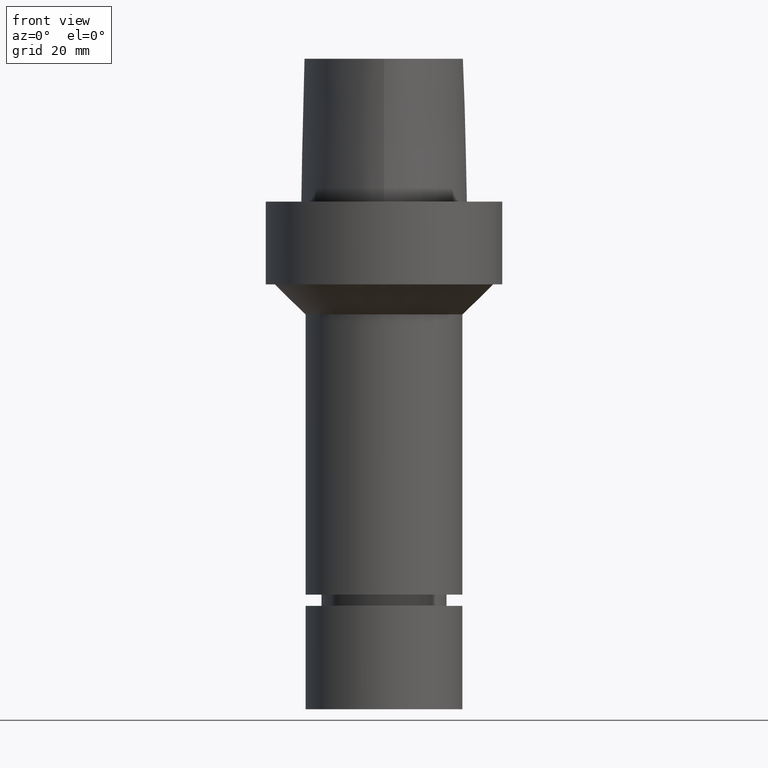
[diagram: clean part render]
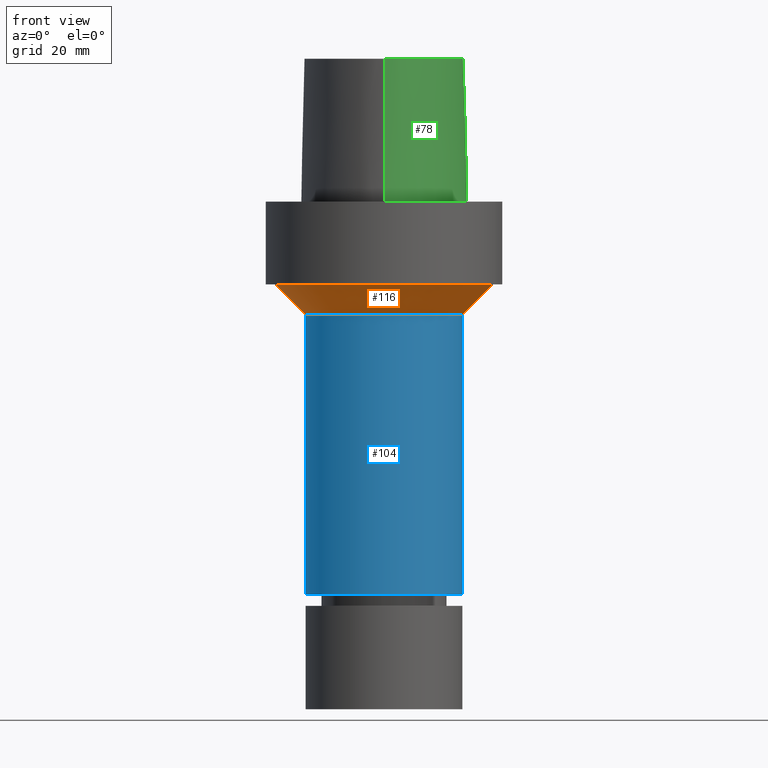
[diagram: same view with three faces highlighted in distinct colors, each labeled with its STEP entity id]
A machine part, front view with three faces highlighted in distinct colors.
Their STEP definitions:

[orange] entity #116 — the highlighted conical surface has half-angle 45 deg.
#113=EDGE_CURVE('Unnamed[1]',#253,#253,#254,.T.);
#116=ADVANCED_FACE('Unnamed[1]',(#257,#258),#259,.T.);
#146=EDGE_CURVE('Unnamed[1]',#300,#300,#301,.T.);
#253=VERTEX_POINT('',#528);
#254=CIRCLE('',#529,21.0000000000003);
#257=FACE_BOUND('',#533,.T.);
#258=FACE_BOUND('',#534,.T.);
#259=CONICAL_SURFACE('',#535,25.0000000000003,0.785398163397453);
#300=VERTEX_POINT('',#657);
#301=CIRCLE('',#658,29.0000000000003);
#528=CARTESIAN_POINT('',(1.83697019872106E-015,21.0000000000003,-30.0000000000005));
#529=AXIS2_PLACEMENT_3D('',#799,#800,#801);
#533=EDGE_LOOP('',(#803));
#534=EDGE_LOOP('',(#804));
#535=AXIS2_PLACEMENT_3D('',#805,#806,#807);
#657=CARTESIAN_POINT('',(1.34711147906212E-015,29.0000000000003,-22.0000000000006));
#658=AXIS2_PLACEMENT_3D('',#847,#848,#849);
#799=CARTESIAN_POINT('',(1.83697019872106E-015,3.67394039744212E-015,-30.0000000000005));
#800=DIRECTION('',(6.12323399573677E-017,1.22464679914735E-016,-1.0));
#801=DIRECTION('',(-1.23259516440783E-032,1.0,1.22464679914735E-016));
#803=ORIENTED_EDGE('',*,*,#113,.F.);
#804=ORIENTED_EDGE('',*,*,#146,.T.);
#805=CARTESIAN_POINT('',(1.59204083889159E-015,3.18408167778318E-015,-26.0000000000005));
#806=DIRECTION('',(-6.12323399573676E-017,-1.22464679914735E-016,1.0));
#807=DIRECTION('',(-1.23259516440783E-032,1.0,1.22464679914735E-016));
#847=CARTESIAN_POINT('',(1.34711147906212E-015,2.69422295812425E-015,-22.0000000000006));
#848=DIRECTION('',(6.12323399573676E-017,1.22464679914735E-016,-1.0));
#849=DIRECTION('',(-1.23259516440783E-032,1.0,1.22464679914735E-016));

[blue] entity #104 — the highlighted cylindrical surface (bore or boss wall) has radius 21 mm, axis along (0, 0, -1).
#104=ADVANCED_FACE('Unnamed[1]',(#239,#240),#241,.T.);
#113=EDGE_CURVE('Unnamed[1]',#253,#253,#254,.T.);
#148=EDGE_CURVE('Unnamed[1]',#303,#303,#304,.T.);
#239=FACE_BOUND('',#493,.T.);
#240=FACE_BOUND('',#494,.T.);
#241=CYLINDRICAL_SURFACE('',#495,21.0000000000002);
#253=VERTEX_POINT('',#528);
#254=CIRCLE('',#529,21.0000000000003);
#303=VERTEX_POINT('',#661);
#304=CIRCLE('',#662,21.0000000000001);
#493=EDGE_LOOP('',(#785));
#494=EDGE_LOOP('',(#786));
#495=AXIS2_PLACEMENT_3D('',#787,#788,#789);
#528=CARTESIAN_POINT('',(1.83697019872106E-015,21.0000000000003,-30.0000000000005));
#529=AXIS2_PLACEMENT_3D('',#799,#800,#801);
#661=CARTESIAN_POINT('',(6.39877952554491E-015,21.0000000000001,-104.5));
#662=AXIS2_PLACEMENT_3D('',#850,#851,#852);
#785=ORIENTED_EDGE('',*,*,#148,.F.);
#786=ORIENTED_EDGE('',*,*,#113,.T.);
#787=CARTESIAN_POINT('',(4.11787486213299E-015,8.23574972426598E-015,-67.2500000000002));
#788=DIRECTION('',(6.12323399573677E-017,1.22464679914735E-016,-1.0));
#789=DIRECTION('',(-1.23259516440783E-032,1.0,1.22464679914735E-016));
#799=CARTESIAN_POINT('',(1.83697019872106E-015,3.67394039744212E-015,-30.0000000000005));
#800=DIRECTION('',(6.12323399573677E-017,1.22464679914735E-016,-1.0));
#801=DIRECTION('',(-1.23259516440783E-032,1.0,1.22464679914735E-016));
#850=CARTESIAN_POINT('',(6.39877952554491E-015,1.27975590510898E-014,-104.5));
#851=DIRECTION('',(6.12323399573677E-017,1.22464679914735E-016,-1.0));
#852=DIRECTION('',(-1.23259516440783E-032,1.0,1.22464679914735E-016));

[green] entity #78 — the highlighted face is a freeform B-spline surface patch.
#75=EDGE_CURVE('Unnamed[1]',#195,#196,#197,.T.);
#78=ADVANCED_FACE('Unnamed[1]',(#200),#201,.T.);
#80=EDGE_CURVE('Unnamed[1]',#203,#204,#205,.T.);
#101=EDGE_CURVE('Unnamed[1]',#195,#203,#236,.T.);
#160=EDGE_CURVE('Unnamed[1]',#204,#196,#320,.T.);
#195=VERTEX_POINT('',#354);
#196=VERTEX_POINT('',#355);
#197=LINE('',#356,#357);
#200=FACE_OUTER_BOUND('',#361,.T.);
#201=B_SPLINE_SURFACE_WITH_KNOTS('',3,3,((#362,#363,#364,#365),(#366,#367,#368,#369),(#370,#371,#372,#373),(#374,#375,#376,#377),(#378,#379,#380,#381),(#382,#383,#384,#385),(#386,#387,#388,#389),(#390,#391,#392,#393),(#394,#395,#396,#397),(#398,#399,#400,#401),(#402,#403,#404,#405),(#406,#407,#408,#409),(#410,#411,#412,#413),(#414,#415,#416,#417),(#418,#419,#420,#421),(#422,#423,#424,#425),(#426,#427,#428,#429)),.UNSPECIFIED.,.F.,.F.,.F.,(4,1,1,1,1,1,1,1,1,1,1,1,1,1,4),(4,4),(-13.2302678617486,-12.816821991069,-12.4033761203893,-11.9899302497097,-11.57648437903,-11.1630385083504,-10.9563155730106,-10.7495926376707,-10.3361467669911,-9.92270089631145,-9.09580915495216,-8.26891741359287,-7.44202567223358,-7.02857980155394,-6.6151339308743),(-3.8,0.0),.UNSPECIFIED.);
#203=VERTEX_POINT('',#432);
#204=VERTEX_POINT('',#433);
#205=LINE('',#434,#435);
#236=B_SPLINE_CURVE_WITH_KNOTS('',3,(#474,#475,#476,#477,#478,#479,#480,#481,#482,#483,#484,#485,#486,#487,#488,#489),.UNSPECIFIED.,.F.,.F.,(4,1,1,1,1,1,1,1,1,1,1,1,1,4),(6.61513393087476,6.99917207152274,7.48193246986995,7.96289324787093,8.45540287038584,9.10291653679981,9.67129810936083,10.1618749681153,10.6358867802489,11.1080734988593,11.6043706019633,12.09451993853,12.6985979284494,13.2302678617486),.UNSPECIFIED.);
#320=B_SPLINE_CURVE_WITH_KNOTS('',3,(#699,#700,#701,#702,#703,#704,#705,#706,#707,#708,#709,#710,#711,#712,#713,#714,#715),.UNSPECIFIED.,.F.,.F.,(4,1,1,1,1,1,1,1,1,1,1,1,1,1,4),(-13.2302678617486,-12.816821991069,-12.4033761203893,-11.9899302497097,-11.57648437903,-11.1630385083504,-10.9563155730106,-10.7495926376707,-10.3361467669911,-9.92270089631145,-9.09580915495216,-8.26891741359287,-7.44202567223358,-7.02857980155394,-6.6151339308743),.UNSPECIFIED.);
#354=CARTESIAN_POINT('',(0.038736923393866,-22.5191997536361,38.0));
#355=CARTESIAN_POINT('',(0.04359356758149,-23.4691235068931,7.78075697532443E-032));
#356=CARTESIAN_POINT('',(0.038736923393866,-22.5191997536361,38.0));
#357=VECTOR('',#740,38.0118715498723);
#361=EDGE_LOOP('',(#742,#743,#744,#745));
#362=CARTESIAN_POINT('',(-0.001218367817519,19.7276822012873,38.0));
#363=CARTESIAN_POINT('',(0.014082083248157,20.0439577123075,25.3333333333066));
#364=CARTESIAN_POINT('',(0.029382534313671,20.3602332232908,12.6666666666934));
#365=CARTESIAN_POINT('',(0.044682985379347,20.6765087343109,1.61778115328528E-031));
#366=CARTESIAN_POINT('',(1.37788651195108,19.6609652834875,38.0));
#367=CARTESIAN_POINT('',(1.3931885827258,19.9772407169847,25.3333333333066));
#368=CARTESIAN_POINT('',(1.40849065356095,20.2935162254648,12.6666666666934));
#369=CARTESIAN_POINT('',(1.42379272427753,20.6097915814392,8.62816615085482E-032));
#370=CARTESIAN_POINT('',(4.135446440878,19.5347778787784,38.0));
#371=CARTESIAN_POINT('',(4.16466278851883,19.8511031866125,25.3333333333066));
#372=CARTESIAN_POINT('',(4.1938791526746,20.1674284644204,12.6666666666934));
#373=CARTESIAN_POINT('',(4.2230955003445,20.4837538303966,1.4791141972894E-031));
#374=CARTESIAN_POINT('',(8.213607363795,18.7706026638736,38.0));
#375=CARTESIAN_POINT('',(8.29980745008421,19.0767495109635,25.3333333333066));
#376=CARTESIAN_POINT('',(8.38600751285747,19.3828964329996,12.6666666666934));
#377=CARTESIAN_POINT('',(8.47220762821777,19.6890432607088,9.86076131526265E-032));
#378=CARTESIAN_POINT('',(12.1316338645671,17.3698624840857,38.0));
#379=CARTESIAN_POINT('',(12.2591308270381,17.6610739397708,25.3333333333066));
#380=CARTESIAN_POINT('',(12.3866278083543,17.9522853923553,12.6666666666934));
#381=CARTESIAN_POINT('',(12.5141247708253,18.2434968480404,0.0));
#382=CARTESIAN_POINT('',(15.7706546153679,15.3789501349612,38.0));
#383=CARTESIAN_POINT('',(15.9483905900895,15.6437731794811,25.3333333333066));
#384=CARTESIAN_POINT('',(16.1261265513272,15.9085961736944,12.6666666666934));
#385=CARTESIAN_POINT('',(16.3038624872874,16.1734192182143,1.97215226305253E-031));
#386=CARTESIAN_POINT('',(18.4265894256284,13.0570022172893,38.0));
#387=CARTESIAN_POINT('',(18.6659567517146,13.2725589420689,25.3333333333066));
#388=CARTESIAN_POINT('',(18.9053240921419,13.4881156488541,12.6666666666934));
#389=CARTESIAN_POINT('',(19.1446913988473,13.7036723639434,-1.97215226305253E-031));
#390=CARTESIAN_POINT('',(19.8679958653038,10.6923771981998,38.0));
#391=CARTESIAN_POINT('',(20.1559937048299,10.8287388264873,25.3333333333066));
#392=CARTESIAN_POINT('',(20.4439915656177,10.965100461641,12.6666666666934));
#393=CARTESIAN_POINT('',(20.7319894342149,11.1014620996188,0.0));
#394=CARTESIAN_POINT('',(20.8470867582337,8.07149548576131,38.0));
#395=CARTESIAN_POINT('',(21.1591164072431,8.14132775555392,25.3333333333066));
#396=CARTESIAN_POINT('',(21.4711459821861,8.21116003697855,12.6666666666934));
#397=CARTESIAN_POINT('',(21.7831756505763,8.28099229708081,-1.97215226305253E-031));
#398=CARTESIAN_POINT('',(21.2693244256982,4.61157245650171,38.0));
#399=CARTESIAN_POINT('',(21.5881576801997,4.6105997689982,25.3333333333066));
#400=CARTESIAN_POINT('',(21.9069908544037,4.60962709346857,12.6666666666934));
#401=CARTESIAN_POINT('',(22.2258240701438,4.60865440596506,0.0));
#402=CARTESIAN_POINT('',(20.8071610855575,-0.912828649855193,38.0));
#403=CARTESIAN_POINT('',(21.119311671178,-0.979640884839481,25.3333333333066));
#404=CARTESIAN_POINT('',(21.4314624224461,-1.04645306732201,12.6666666666934));
#405=CARTESIAN_POINT('',(21.7436130080666,-1.11326526354485,0.0));
#406=CARTESIAN_POINT('',(18.6841935581315,-7.54428794252837,38.0));
#407=CARTESIAN_POINT('',(18.9734452551861,-7.6809665891091,25.3333333333066));
#408=CARTESIAN_POINT('',(19.2626970689956,-7.81764505382656,12.6666666666934));
#409=CARTESIAN_POINT('',(19.5519487660502,-7.95432366164584,0.0));
#410=CARTESIAN_POINT('',(14.2175552814,-14.5971504342323,38.0));
#411=CARTESIAN_POINT('',(14.4641757465198,-14.8010930946929,25.3333333333066));
#412=CARTESIAN_POINT('',(14.710796247264,-15.0050359737917,12.6666666666934));
#413=CARTESIAN_POINT('',(14.9574167123838,-15.2089785567293,0.0));
#414=CARTESIAN_POINT('',(9.0844808732933,-19.3179298129689,38.0));
#415=CARTESIAN_POINT('',(9.27912152349017,-19.572866915557,25.3333333333066));
#416=CARTESIAN_POINT('',(9.47376218971294,-19.827804295621,12.6666666666934));
#417=CARTESIAN_POINT('',(9.66840283021945,-20.0827414369705,-9.86076131526265E-032));
#418=CARTESIAN_POINT('',(4.17112919194182,-21.8987568152736,38.0));
#419=CARTESIAN_POINT('',(4.28618163483998,-22.1973837173649,25.3333333333066));
#420=CARTESIAN_POINT('',(4.40123406239433,-22.4960105163661,12.6666666666934));
#421=CARTESIAN_POINT('',(4.51628650521788,-22.7946374572188,-9.86076131526265E-032));
#422=CARTESIAN_POINT('',(1.41533654381097,-22.5120888467812,38.0));
#423=CARTESIAN_POINT('',(1.46311520162011,-22.8284916374445,25.3333333333066));
#424=CARTESIAN_POINT('',(1.51089385942236,-23.144894486341,12.6666666666934));
#425=CARTESIAN_POINT('',(1.55867251738073,-23.4612972770043,-1.23259516440783E-032));
#426=CARTESIAN_POINT('',(0.038736923393866,-22.5191997536361,38.0));
#427=CARTESIAN_POINT('',(0.04035580478973,-22.8358410047159,25.3333333333066));
#428=CARTESIAN_POINT('',(0.041974686185626,-23.1524822558133,12.6666666666934));
#429=CARTESIAN_POINT('',(0.04359356758149,-23.4691235068931,7.78075697532443E-032));
#432=CARTESIAN_POINT('',(-0.001218547003662,19.7276821925089,38.0));
#433=CARTESIAN_POINT('',(0.044682985379347,20.6765087343109,1.61778115328528E-031));
#434=CARTESIAN_POINT('',(-0.001218547003662,19.7276821925089,38.0));
#435=VECTOR('',#746,38.0118715503078);
#474=CARTESIAN_POINT('',(0.038736923394311,-22.519199753636,38.0));
#475=CARTESIAN_POINT('',(1.31742058183662,-22.512662269405,38.0));
#476=CARTESIAN_POINT('',(4.2093773447498,-21.9116226439989,38.0));
#477=CARTESIAN_POINT('',(8.20895504542113,-19.7798683845067,38.0));
#478=CARTESIAN_POINT('',(11.9784633234593,-16.681663904162,38.0));
#479=CARTESIAN_POINT('',(15.5308821579362,-12.5807487594113,38.0));
#480=CARTESIAN_POINT('',(18.4566248438667,-7.64932246015528,38.0));
#481=CARTESIAN_POINT('',(20.4036090752029,-2.27012499825289,38.0));
#482=CARTESIAN_POINT('',(21.2357187429189,2.79891401173156,38.0));
#483=CARTESIAN_POINT('',(21.0811206267748,7.62543090736657,38.0));
#484=CARTESIAN_POINT('',(19.3383577336563,12.2772250726194,38.0));
#485=CARTESIAN_POINT('',(15.5796322014404,15.5799672120682,38.0));
#486=CARTESIAN_POINT('',(10.8392956074438,17.9834601687347,38.0));
#487=CARTESIAN_POINT('',(5.56068045850571,19.4586143858472,38.0));
#488=CARTESIAN_POINT('',(1.77223893711014,19.6418877095654,38.0));
#489=CARTESIAN_POINT('',(-0.001218367817519,19.7276822012873,38.0));
#699=CARTESIAN_POINT('',(0.044682985379347,20.6765087343109,1.61778115328528E-031));
#700=CARTESIAN_POINT('',(1.42379272427753,20.6097915814392,8.62816615085482E-032));
#701=CARTESIAN_POINT('',(4.2230955003445,20.4837538303966,1.4791141972894E-031));
#702=CARTESIAN_POINT('',(8.47220762821777,19.6890432607088,9.86076131526265E-032));
#703=CARTESIAN_POINT('',(12.5141247708253,18.2434968480404,0.0));
#704=CARTESIAN_POINT('',(16.3038624872874,16.1734192182143,1.97215226305253E-031));
#705=CARTESIAN_POINT('',(19.1446913988473,13.7036723639434,-1.97215226305253E-031));
#706=CARTESIAN_POINT('',(20.7319894342149,11.1014620996188,0.0));
#707=CARTESIAN_POINT('',(21.7831756505763,8.28099229708081,-1.97215226305253E-031));
#708=CARTESIAN_POINT('',(22.2258240701438,4.60865440596506,0.0));
#709=CARTESIAN_POINT('',(21.7436130080666,-1.11326526354485,0.0));
#710=CARTESIAN_POINT('',(19.5519487660502,-7.95432366164584,0.0));
#711=CARTESIAN_POINT('',(14.9574167123838,-15.2089785567293,0.0));
#712=CARTESIAN_POINT('',(9.66840283021945,-20.0827414369705,-9.86076131526265E-032));
#713=CARTESIAN_POINT('',(4.51628650521788,-22.7946374572188,-9.86076131526265E-032));
#714=CARTESIAN_POINT('',(1.55867251738073,-23.4612972770043,-1.23259516440783E-032));
#715=CARTESIAN_POINT('',(0.04359356758149,-23.4691235068931,7.78075697532443E-032));
#740=DIRECTION('',(0.000127766510556,-0.024990186342461,-0.999687688361864));
#742=ORIENTED_EDGE('',*,*,#160,.F.);
#743=ORIENTED_EDGE('',*,*,#80,.F.);
#744=ORIENTED_EDGE('',*,*,#101,.F.);
#745=ORIENTED_EDGE('',*,*,#75,.T.);
#746=DIRECTION('',(0.001207557810519,0.024961321374199,-0.999687688350411));